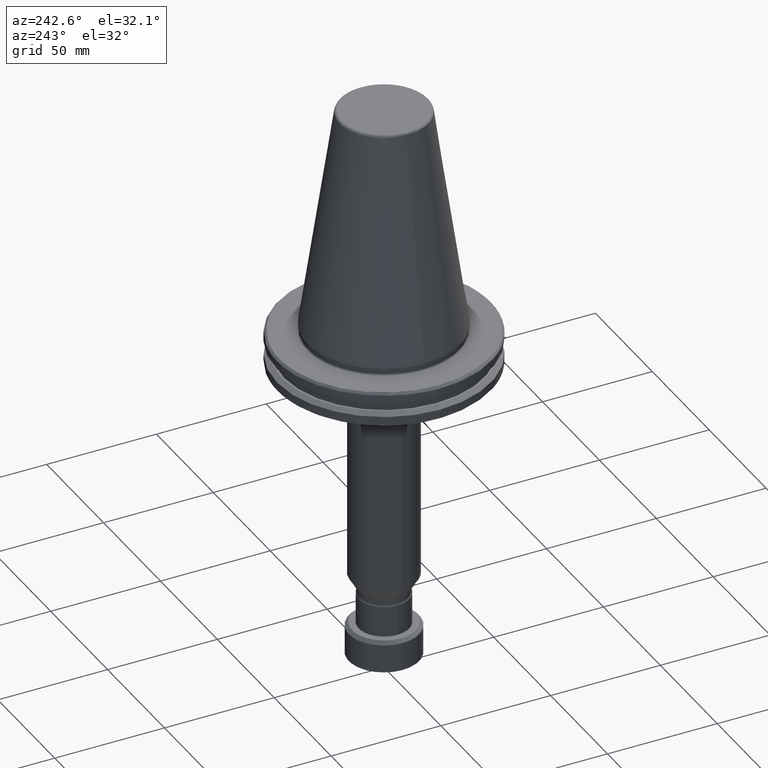
[diagram: clean part render]
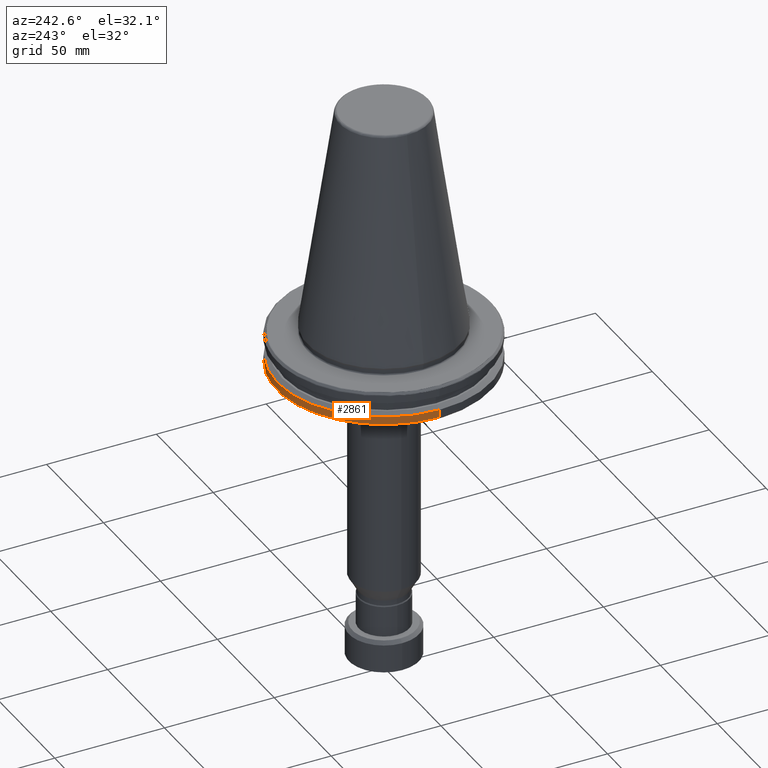
[diagram: same view with one face highlighted and labeled with its STEP entity id]
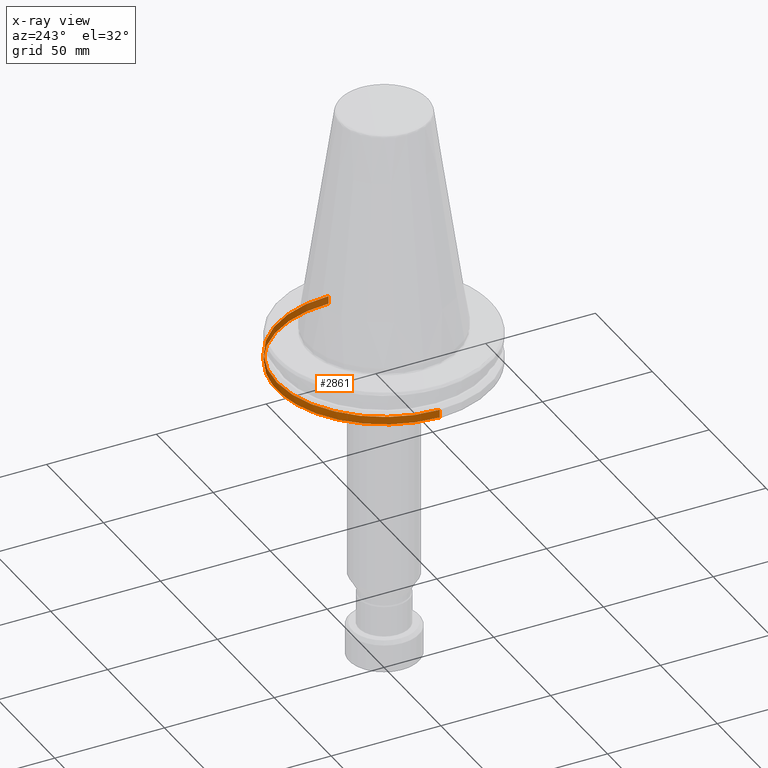
[diagram: x-ray of the same camera — body ghosted, the highlighted face saturated]
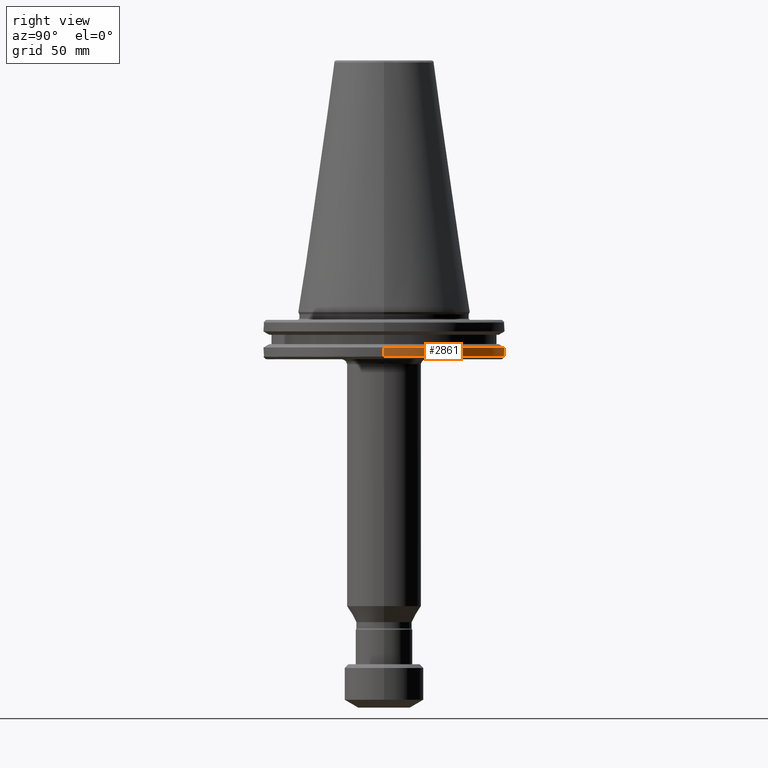
[diagram: same view with one face highlighted and labeled with its STEP entity id]
A machine part, auxiliary view. The second image highlights one B-rep face of the part: STEP entity #2861.
The next image is the same camera in x-ray: the body ghosted, the highlighted face saturated — about 12% of this face is hidden behind the body in this view.
A second angle (right view) of the same face is appended — the face is thin or edge-on in the first view.
In plain terms, the highlighted cylindrical surface (partial cylindrical patch) has radius 48.75 mm, axis along (0, 0, 1).
Its self-contained STEP definition (entity closure, byte-faithful):
#45 = CARTESIAN_POINT ( 'NONE',  ( 48.75000000000000000, 0.0000000000000000000, 109.4760732604896600 ) ) ;
#356 = CARTESIAN_POINT ( 'NONE',  ( 0.0000000000000000000, 0.0000000000000000000, -14.34759526419164500 ) ) ;
#370 = CARTESIAN_POINT ( 'NONE',  ( 48.75000000000000000, 5.970153145843347100E-015, -14.34759526419164500 ) ) ;
#378 = DIRECTION ( 'NONE',  ( 0.0000000000000000000, 0.0000000000000000000, 1.000000000000000000 ) ) ;
#414 = CARTESIAN_POINT ( 'NONE',  ( 13.39707817141273900, 46.87302845420868600, -17.93431457505077400 ) ) ;
#567 = ORIENTED_EDGE ( 'NONE', *, *, #1544, .T. ) ;
#635 = DIRECTION ( 'NONE',  ( 1.000000000000000000, 0.0000000000000000000, 0.0000000000000000000 ) ) ;
#646 = EDGE_CURVE ( 'NONE', #1132, #3360, #3446, .T. ) ;
#694 = LINE ( 'NONE', #45, #2197 ) ;
#705 = CARTESIAN_POINT ( 'NONE',  ( 0.0000000000000000000, 0.0000000000000000000, -17.93431457505077700 ) ) ;
#722 = CYLINDRICAL_SURFACE ( 'NONE', #2569, 48.75000000000000000 ) ;
#793 = AXIS2_PLACEMENT_3D ( 'NONE', #3125, #1598, #3379 ) ;
#841 = AXIS2_PLACEMENT_3D ( 'NONE', #356, #2257, #635 ) ;
#984 = DIRECTION ( 'NONE',  ( 1.000000000000000000, 0.0000000000000000000, 0.0000000000000000000 ) ) ;
#986 = CARTESIAN_POINT ( 'NONE',  ( -48.75000000000000000, 0.0000000000000000000, -14.34759526419164500 ) ) ;
#1031 = CIRCLE ( 'NONE', #2243, 48.75000000000000700 ) ;
#1091 = VERTEX_POINT ( 'NONE', #370 ) ;
#1132 = VERTEX_POINT ( 'NONE', #2134 ) ;
#1214 = CARTESIAN_POINT ( 'NONE',  ( -13.51915856623729600, 46.83796378645140400, -17.93431457505078100 ) ) ;
#1221 = CARTESIAN_POINT ( 'NONE',  ( 0.0000000000000000000, 0.0000000000000000000, -17.93431457505079200 ) ) ;
#1229 = CARTESIAN_POINT ( 'NONE',  ( 0.0000000000000000000, 0.0000000000000000000, 109.4760732604896600 ) ) ;
#1299 = ORIENTED_EDGE ( 'NONE', *, *, #646, .T. ) ;
#1380 = VECTOR ( 'NONE', #2732, 1000.000000000000000 ) ;
#1428 = EDGE_CURVE ( 'NONE', #2118, #1091, #694, .T. ) ;
#1431 = CIRCLE ( 'NONE', #841, 48.75000000000000000 ) ;
#1448 = CIRCLE ( 'NONE', #793, 48.75000000000000000 ) ;
#1457 = CARTESIAN_POINT ( 'NONE',  ( 48.75000000000000000, 0.0000000000000000000, -17.93431457505077700 ) ) ;
#1490 = DIRECTION ( 'NONE',  ( 1.000000000000000000, 0.0000000000000000000, 0.0000000000000000000 ) ) ;
#1544 = EDGE_CURVE ( 'NONE', #1791, #1132, #1448, .T. ) ;
#1598 = DIRECTION ( 'NONE',  ( 0.0000000000000000000, 0.0000000000000000000, 1.000000000000000000 ) ) ;
#1678 = AXIS2_PLACEMENT_3D ( 'NONE', #705, #2555, #984 ) ;
#1791 = VERTEX_POINT ( 'NONE', #1214 ) ;
#1900 = EDGE_CURVE ( 'NONE', #2118, #2895, #2757, .T. ) ;
#2108 = EDGE_CURVE ( 'NONE', #3360, #1091, #1431, .T. ) ;
#2118 = VERTEX_POINT ( 'NONE', #1457 ) ;
#2131 = FACE_OUTER_BOUND ( 'NONE', #2138, .T. ) ;
#2134 = CARTESIAN_POINT ( 'NONE',  ( -48.75000000000000000, 5.970153145843347100E-015, -17.93431457505077700 ) ) ;
#2138 = EDGE_LOOP ( 'NONE', ( #567, #1299, #2556, #2181, #2673, #2983 ) ) ;
#2181 = ORIENTED_EDGE ( 'NONE', *, *, #1428, .F. ) ;
#2197 = VECTOR ( 'NONE', #3023, 1000.000000000000000 ) ;
#2243 = AXIS2_PLACEMENT_3D ( 'NONE', #1221, #3046, #1490 ) ;
#2257 = DIRECTION ( 'NONE',  ( -0.0000000000000000000, -0.0000000000000000000, -1.000000000000000000 ) ) ;
#2555 = DIRECTION ( 'NONE',  ( 0.0000000000000000000, 0.0000000000000000000, 1.000000000000000000 ) ) ;
#2556 = ORIENTED_EDGE ( 'NONE', *, *, #2108, .T. ) ;
#2569 = AXIS2_PLACEMENT_3D ( 'NONE', #1229, #378, #3056 ) ;
#2673 = ORIENTED_EDGE ( 'NONE', *, *, #1900, .T. ) ;
#2706 = CARTESIAN_POINT ( 'NONE',  ( -48.75000000000000000, 5.970153145843347100E-015, 109.4760732604896600 ) ) ;
#2732 = DIRECTION ( 'NONE',  ( 0.0000000000000000000, 0.0000000000000000000, 1.000000000000000000 ) ) ;
#2757 = CIRCLE ( 'NONE', #1678, 48.75000000000000000 ) ;
#2828 = EDGE_CURVE ( 'NONE', #2895, #1791, #1031, .T. ) ;
#2861 = ADVANCED_FACE ( 'NONE', ( #2131 ), #722, .T. ) ;
#2895 = VERTEX_POINT ( 'NONE', #414 ) ;
#2983 = ORIENTED_EDGE ( 'NONE', *, *, #2828, .T. ) ;
#3023 = DIRECTION ( 'NONE',  ( 0.0000000000000000000, 0.0000000000000000000, 1.000000000000000000 ) ) ;
#3046 = DIRECTION ( 'NONE',  ( -0.0000000000000000000, -0.0000000000000000000, 1.000000000000000000 ) ) ;
#3056 = DIRECTION ( 'NONE',  ( 1.000000000000000000, 0.0000000000000000000, 0.0000000000000000000 ) ) ;
#3125 = CARTESIAN_POINT ( 'NONE',  ( 0.0000000000000000000, 0.0000000000000000000, -17.93431457505077700 ) ) ;
#3360 = VERTEX_POINT ( 'NONE', #986 ) ;
#3379 = DIRECTION ( 'NONE',  ( 1.000000000000000000, 0.0000000000000000000, 0.0000000000000000000 ) ) ;
#3446 = LINE ( 'NONE', #2706, #1380 ) ;